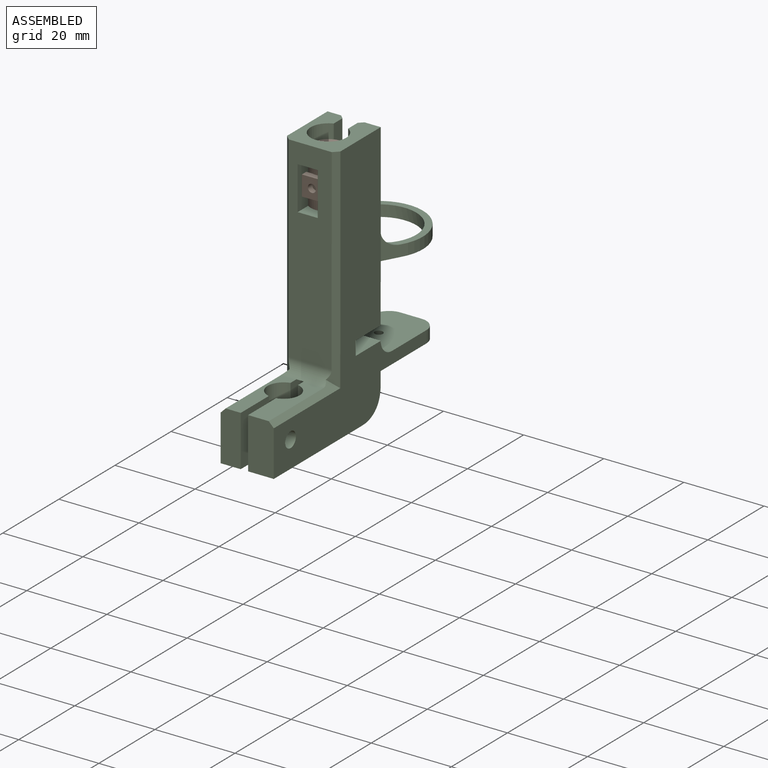
[diagram: assembled view]
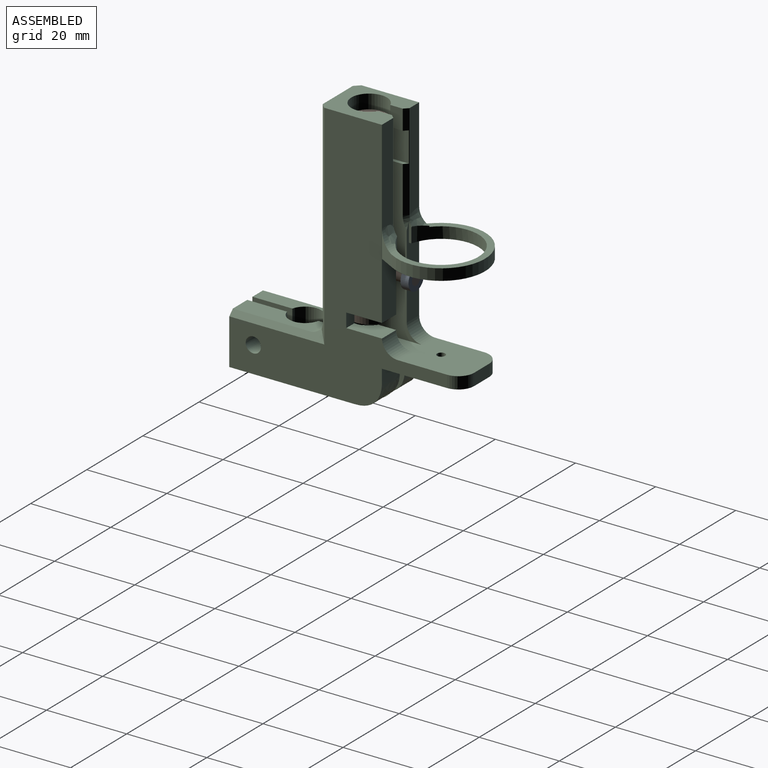
[diagram: assembled view, second angle]
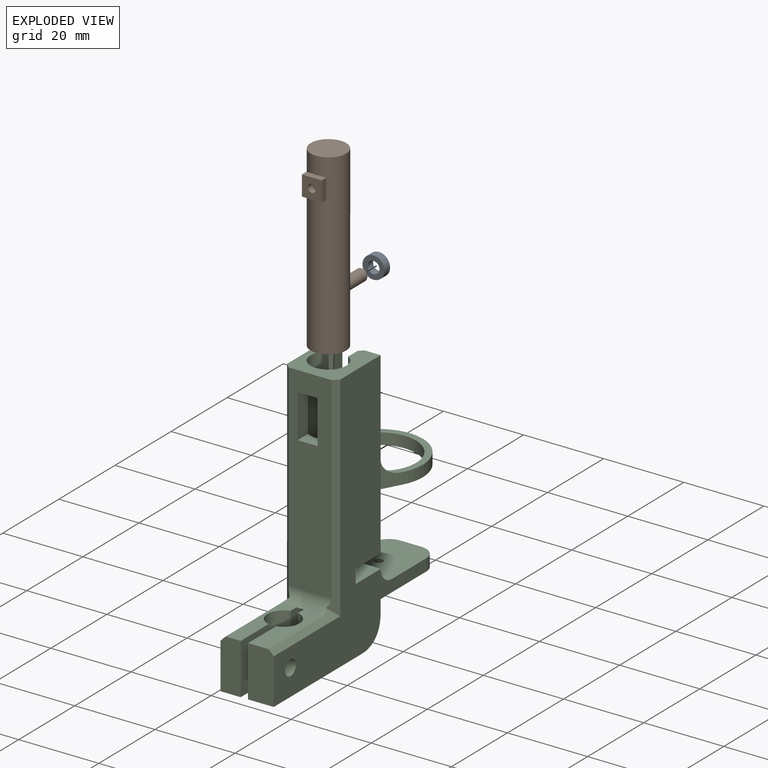
[diagram: exploded view]
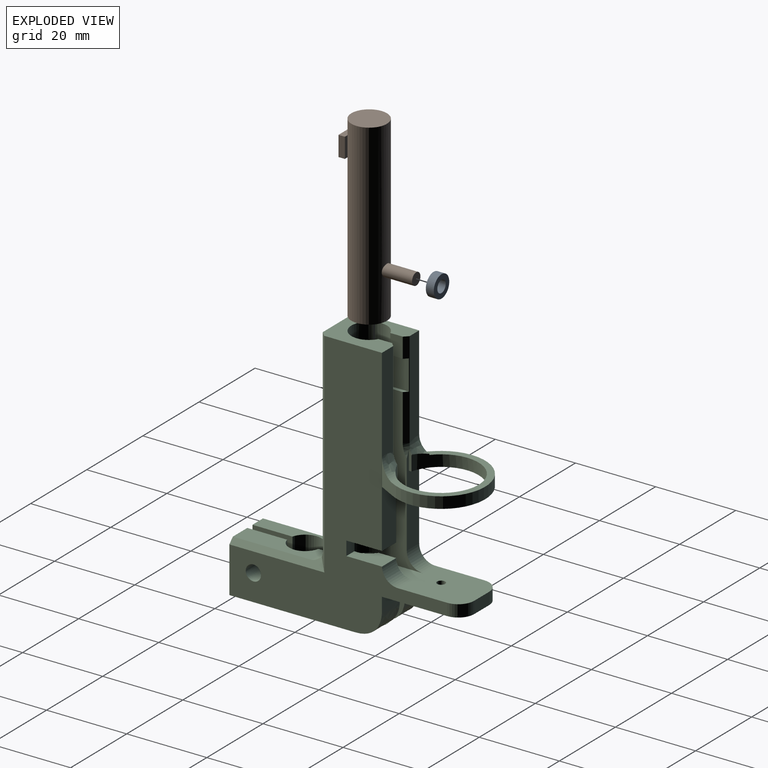
[diagram: exploded view, second angle]
ASSEMBLY  parts=3 mates=2
PART A: 4 faces, bbox 5.5x2x5.5 mm
  f0: cylinder r=1.5mm len=3mm, axis (0,1,0), area 18.8mm2, adj f2,f3
  f1: cylinder r=2.75mm len=5.5mm, axis (0,1,0), area 34.6mm2, adj f2,f3
  f2: plane 5.5x5.5mm, normal (0,-1,0), area 16.7mm2, adj f0,f1
  f3: plane 5.5x5.5mm, normal (0,1,0), area 16.7mm2, adj f0,f1
PART B: 14 faces, bbox 8.9x17.7x44.5 mm
  f0: cylinder r=4.45mm len=44.45mm, axis (0,0,-1), area 1223.6mm2, adj f1,f2,f4,f5,f7,f9,f12
  f1: plane 8.89x8.89mm, normal (0,0,1), area 62.1mm2, adj f0
  f2: plane 8.89x8.89mm, normal (0,0,-1), area 62.1mm2, adj f0
  f3: cylinder r=1mm len=2mm, axis (0,-1,0), area 9.6mm2, adj f10,f11
  f4: plane 5x1.45mm, normal (0,1,0), area 7.2mm2, adj f0,f7,f8,f9
  f5: plane 5x1.45mm, normal (0,1,0), area 7.2mm2, adj f0,f6,f7,f9
  f6: plane 5x1.6mm, normal (1,0,0), area 8mm2, adj f5,f7,f9,f10
  f7: plane 5x1.6mm, normal (0,0,1), area 7.8mm2, adj f0,f4,f5,f6,f8,f10
  f8: plane 5x1.6mm, normal (-1,0,0), area 8mm2, adj f4,f7,f9,f10
  f9: plane 5x1.6mm, normal (0,0,-1), area 7.8mm2, adj f0,f4,f5,f6,f8,f10
  f10: plane 5x5mm, normal (0,-1,0), area 21.9mm2, adj f3,f6,f7,f8,f9
  f11: cylinder r=4.45mm len=2mm, axis (0,0,-1), area 3.2mm2, adj f3
  f12: cylinder r=1.5mm len=7.56mm, axis (0,-1,0), area 70mm2, adj f0,f13
  f13: plane 3x3mm, normal (0,1,0), area 7.1mm2, adj f12
PART C: 84 faces, bbox 22.9x59.7x65.8 mm
  f0: plane 4.71x0.66mm, normal (1,0,0), area 2.7mm2, adj f1,f4,f21,f59,f83
  f1: cylinder r=9.35mm len=18.71mm, axis (0,0,-1), area 155.6mm2, adj f0,f4,f18,f27,f59,f67,f68,f69
  f2: plane 32.25x4.45mm, normal (-1,0,0), area 128.2mm2, adj f5,f8,f20,f32,f42,f71
  f3: plane 39.55x8.12mm, normal (1,0,0), area 152.1mm2, adj f4,f8,f21,f30,f35,f63,f70
  f4: bspline ~4.24x2.72mm, area 3.3mm2, adj f0,f1,f3,f21,f67,f70,f83
  f5: bspline ~3.11x1.8mm, area 3.1mm2, adj f2,f20,f68,f71,f81,f82
  f6: plane 31.1x5.03mm, normal (0,0,-1), area 123.3mm2, adj f10,f12,f14,f16,f27,f74,f80
  f7: plane 6.41x2.8mm, normal (0,1,0), area 17.9mm2, adj f25,f60,f72,f73
  f8: cylinder r=4.45mm len=52.14mm, axis (0,0,-1), area 1159.3mm2, adj f2,f3,f9,f13,f23,f26,f29,f30
  f9: cylinder r=4.45mm len=5mm, axis (0,0,-1), area 5.1mm2, adj f8,f24,f26,f34
  f10: plane 12.7x5.03mm, normal (0,-1,0), area 63.1mm2, adj f6,f11,f27,f51,f80
  f11: plane 19.44x3.76mm, normal (0,0,1), area 55.8mm2, adj f10,f14,f17,f51,f74,f80
  f12: cylinder r=4.5mm len=9.01mm, axis (0,0,-1), area 2.7mm2, adj f6,f16,f45,f47,f72,f73,f74,f76
  f13: plane 8.67x3.46mm, normal (0,0,1), area 22.3mm2, adj f8,f74
  f14: cylinder r=4mm len=12.7mm, axis (0,0,-1), area 134.2mm2, adj f6,f11,f74,f80
  f15: cylinder r=1.91mm len=5.03mm, axis (-1,0,0), area 60.2mm2, adj f27,f80
  f16: bspline ~14.61x7mm, area 52.1mm2, adj f6,f12,f19,f27,f74
  f17: cylinder r=3mm len=10.74mm, axis (1,0,0), area 47.1mm2, adj f11,f28,f46,f49,f50,f51,f52,f73
  f18: plane 22x20.71mm, normal (0,0,1), area 78.6mm2, adj f1,f27,f55,f56,f57,f58,f69
  f19: plane 5.03x2.8mm, normal (0,1,0), area 14.1mm2, adj f16,f27,f60,f74
  f20: plane 44.88x5.21mm, normal (0,1,0), area 172.5mm2, adj f2,f5,f25,f26,f32,f56,f59,f68
  f21: plane 22.48x4.42mm, normal (0,1,0), area 81.4mm2, adj f0,f3,f4,f27,f59,f63,f83
  f22: plane 24.11x3.42mm, normal (0,1,0), area 81mm2, adj f26,f27,f67,f70
  f23: plane 5x3.4mm, normal (-1,0,0), area 17mm2, adj f8,f26,f41,f71
  f24: plane 5x3.11mm, normal (1,0,0), area 15.5mm2, adj f9,f26,f34,f70
  f25: plane 65.16x54.69mm, normal (1,0,0), area 1204.1mm2, adj f7,f20,f26,f30,f31,f32,f33,f44
  f26: plane 15.66x13.28mm, normal (0,0,1), area 128.2mm2, adj f8,f9,f20,f22,f23,f24,f25,f27
  f27: plane 65.16x54.69mm, normal (-1,0,0), area 1242.6mm2, adj f1,f6,f10,f15,f16,f18,f19,f21
  f28: plane 49.14x10.74mm, normal (0,-1,0), area 473.8mm2, adj f17,f26,f37,f38,f39,f40,f49,f52
  f29: plane 8.39x3.81mm, normal (-1,0,0), area 20.2mm2, adj f8,f30,f31,f64
  f30: plane 24.66x13.28mm, normal (0,0,1), area 236.4mm2, adj f3,f8,f25,f27,f29,f61,f62,f63
  f31: plane 8.89x5.05mm, normal (0,0,1), area 37.4mm2, adj f8,f25,f29,f33,f64
  f32: plane 8.89x5.05mm, normal (0,0,-1), area 37.4mm2, adj f2,f8,f20,f25,f33
  f33: plane 3.5x2.86mm, normal (0,1,0), area 10mm2, adj f8,f25,f31,f32
  f34: plane 4.48x0.9mm, normal (0,0,-1), area 3.4mm2, adj f9,f24,f36,f70
  f35: plane 4.48x0.9mm, normal (0,0,1), area 3.4mm2, adj f3,f8,f36,f70
  f36: plane 7.5x4.48mm, normal (1,0,0), area 33.6mm2, adj f8,f34,f35,f70
  f37: plane 5x3.73mm, normal (0,0,1), area 16mm2, adj f8,f28,f38,f40
  f38: plane 10.81x3.73mm, normal (1,0,0), area 40.3mm2, adj f8,f28,f37,f39
  f39: plane 5x3.73mm, normal (0,0,-1), area 16mm2, adj f8,f28,f38,f40
  f40: plane 10.81x3.73mm, normal (-1,0,0), area 40.3mm2, adj f8,f28,f37,f39
  f41: plane 3.87x0.29mm, normal (0,0,-1), area 1.1mm2, adj f8,f23,f43,f71
  f42: plane 3.87x0.29mm, normal (0,0,1), area 1.1mm2, adj f2,f8,f43,f71
  f43: plane 7.5x3.87mm, normal (-1,0,0), area 29mm2, adj f8,f41,f42,f71
  f44: plane 12.7x6.41mm, normal (0,-1,0), area 80.6mm2, adj f25,f45,f46,f50,f79
  f45: plane 31.1x6.41mm, normal (0,0,-1), area 164.4mm2, adj f12,f25,f44,f53,f72,f73,f79
  f46: plane 19.44x5.14mm, normal (0,0,1), area 81.6mm2, adj f17,f44,f50,f53,f73,f79
  f47: plane 9.01x9.01mm, normal (0,0,-1), area 63.7mm2, adj f12
  f48: plane 8.73x3.59mm, normal (0,0,1), area 23.5mm2, adj f8,f73
  f49: plane 53.41x2.15mm, normal (0.71,-0.71,0), area 96.2mm2, adj f17,f25,f26,f28,f50
  f50: plane 23.71x2.15mm, normal (0.71,0,0.71), area 42.8mm2, adj f17,f25,f44,f46,f49
  f51: plane 23.71x2.15mm, normal (-0.71,0,0.71), area 42.8mm2, adj f10,f11,f17,f27,f52
  f52: plane 53.41x2.15mm, normal (-0.71,-0.71,0), area 96.2mm2, adj f17,f26,f27,f28,f51
  f53: cylinder r=4mm len=12.7mm, axis (0,0,-1), area 137.8mm2, adj f45,f46,f73,f79
  f54: cylinder r=1.91mm len=6.41mm, axis (-1,0,0), area 76.8mm2, adj f25,f79
  f55: plane 2.83x0.01mm, normal (0,-1,0), area 0mm2, adj f18,f27,f58,f59
  f56: plane 7.75x5.03mm, normal (0.88,-0.48,0), area 17.2mm2, adj f18,f20,f57,f59,f69
  f57: cylinder r=11mm len=22mm, axis (0,0,-1), area 137.6mm2, adj f18,f56,f58,f59
  f58: plane 2.83x2.28mm, normal (-0.74,-0.68,0), area 8.7mm2, adj f18,f55,f57,f59
  f59: plane 22x20.71mm, normal (0,0,-1), area 96.7mm2, adj f0,f1,f20,f21,f55,f56,f57,f58
  f60: plane 20.27x13.28mm, normal (0,0,-1), area 259.1mm2, adj f7,f19,f25,f27,f61,f62,f65,f66
  f61: plane 5.28x3mm, normal (0,1,0), area 15.8mm2, adj f30,f60,f65,f66
  f62: cylinder r=1mm len=3mm, axis (0,0,-1), area 18.8mm2, adj f30,f60
  f63: cylinder r=4mm len=4.42mm, axis (1,0,0), area 27.8mm2, adj f3,f21,f27,f30
  f64: cylinder r=4mm len=5.05mm, axis (1,0,0), area 30.8mm2, adj f25,f29,f30,f31
  f65: cylinder r=4mm len=4mm, axis (0,0,-1), area 18.8mm2, adj f27,f30,f60,f61
  f66: cylinder r=4mm len=4mm, axis (0,0,1), area 18.8mm2, adj f25,f30,f60,f61
  f67: bspline ~5.81x4.21mm, area 12mm2, adj f1,f4,f22,f27
  f68: bspline ~5.02x4.19mm, area 12.2mm2, adj f1,f5,f20,f69,f82
  f69: cylinder r=4mm len=4mm, axis (-1,0,0), area 12mm2, adj f1,f18,f20,f56,f68
  f70: plane 24.11x1mm, normal (0.71,0.71,0), area 24.6mm2, adj f3,f4,f22,f24,f26,f34,f35,f36
  f71: plane 23.94x1mm, normal (-0.71,0.71,0), area 30.8mm2, adj f2,f5,f20,f23,f26,f41,f42,f43
  f72: bspline ~14.61x7mm, area 67.5mm2, adj f7,f12,f25,f45,f73
  f73: plane 20.55x12.94mm, normal (-1,0,0), area 250.8mm2, adj f7,f8,f12,f17,f45,f46,f48,f53
  f74: plane 20.58x12.94mm, normal (1,0,0), area 251.2mm2, adj f6,f8,f11,f12,f13,f14,f16,f17
  f75: plane 5.71x1.84mm, normal (0,0,-1), area 10.3mm2, adj f8,f17,f73,f74
  f76: plane 9.02x1.87mm, normal (0,0,1), area 16.4mm2, adj f12,f73,f74
  f77: plane 3.92x1.84mm, normal (0,0,-1), area 7.1mm2, adj f8,f73,f74,f78
  f78: plane 2.92x1.84mm, normal (0,-1,0), area 5.4mm2, adj f60,f73,f74,f77
  f79: plane 12.7x9.95mm, normal (-1,0,0), area 114.9mm2, adj f44,f45,f46,f53,f54
  f80: plane 12.7x9.98mm, normal (1,0,0), area 115.4mm2, adj f6,f10,f11,f14,f15
  f81: plane 0.25x0.21mm, normal (0,0,-1), area 0mm2, adj f5,f20,f82
  f82: plane 4.71x0.87mm, normal (-1,0,0), area 3.7mm2, adj f1,f5,f20,f59,f68,f81
  f83: plane 0.05x0.04mm, normal (0,0,-1), area 0mm2, adj f0,f4,f21
PLACE A t=(-11.85,1.98,39.27)mm
PLACE B rot(axis=(0,1,0),0deg) t=(-11.85,-23.42,34.22)mm
PLACE C rot(axis=(0,1,0),0deg) t=(-11.86,-1.51,2.62)mm
MATE revolute A.f0 <-> B.f12  axis (0,1,0) through (-11.85,1.98,39.27)mm
MATE slider B.f0 <-> C.f8  axis (0,0,-1) through (-11.84,-9.77,72.32)mm
